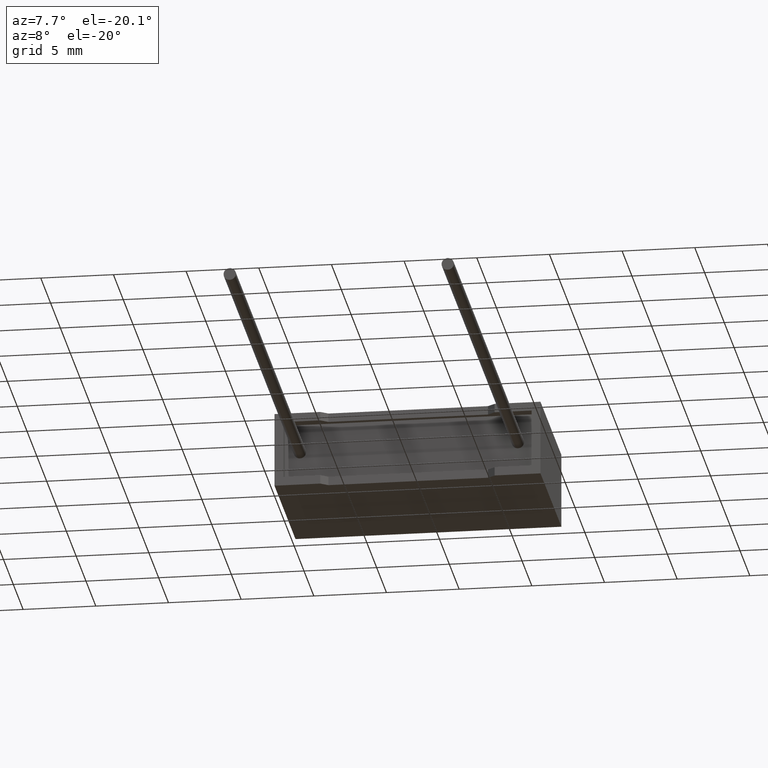
[diagram: clean part render]
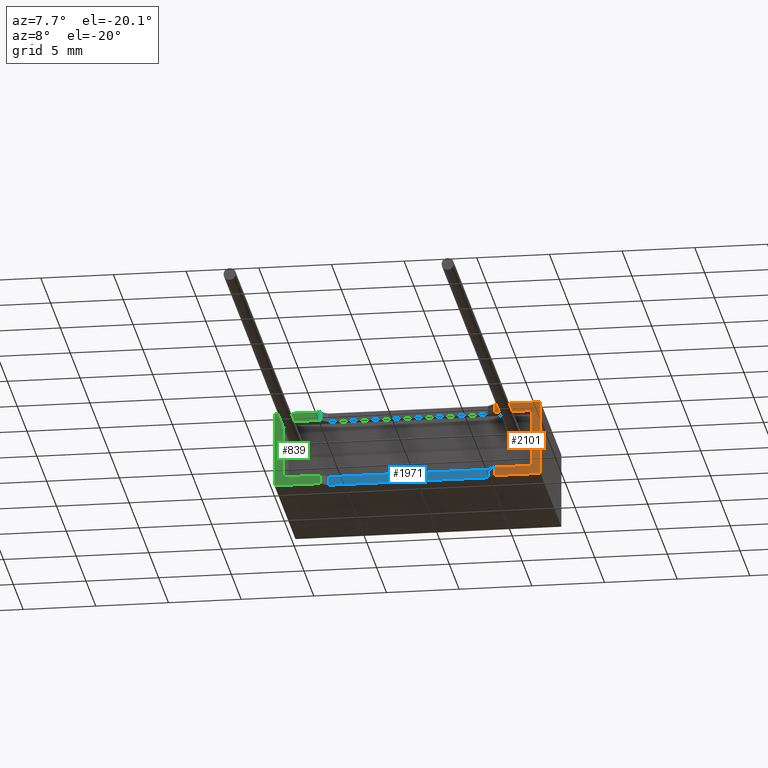
[diagram: same view with three faces highlighted in distinct colors, each labeled with its STEP entity id]
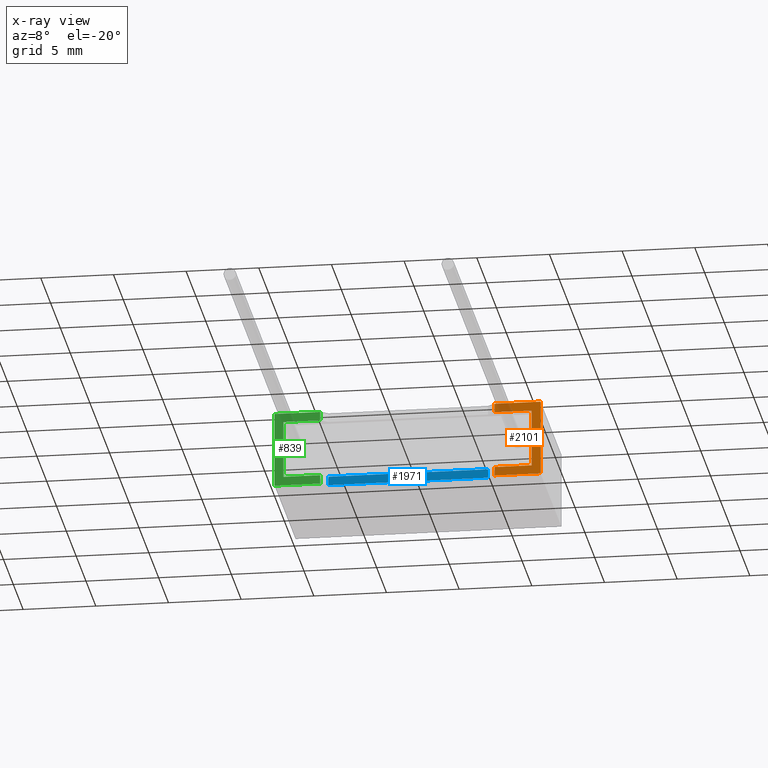
[diagram: x-ray of the same camera — body ghosted, the three highlighted faces saturated]
A machine part, auxiliary view with three faces highlighted in distinct colors.
The next image is the same camera in x-ray (body ghosted, the three faces saturated) — at least one of them is partly hidden behind the body in this view.
Their STEP definitions:

[orange] entity #2101 — the highlighted planar face has unit normal (0, 1, 0).
#57 = VECTOR ( 'NONE', #1546, 1000.000000000000000 ) ;
#67 = PLANE ( 'NONE',  #2442 ) ;
#133 = CARTESIAN_POINT ( 'NONE',  ( 15.15000000000000036, 1.928818708657082084E-16, 4.590000060999998688 ) ) ;
#216 = DIRECTION ( 'NONE',  ( -0.000000000000000000, -0.000000000000000000, 1.000000000000000000 ) ) ;
#228 = VERTEX_POINT ( 'NONE', #460 ) ;
#233 = VECTOR ( 'NONE', #2290, 1000.000000000000000 ) ;
#253 = DIRECTION ( 'NONE',  ( 0.000000000000000000, 1.000000000000000000, 0.000000000000000000 ) ) ;
#293 = ORIENTED_EDGE ( 'NONE', *, *, #1879, .F. ) ;
#373 = VECTOR ( 'NONE', #1919, 1000.000000000000000 ) ;
#382 = VERTEX_POINT ( 'NONE', #772 ) ;
#457 = LINE ( 'NONE', #3006, #2745 ) ;
#460 = CARTESIAN_POINT ( 'NONE',  ( 15.15000000000000036, 1.928818708657082084E-16, 5.200000000000000178 ) ) ;
#524 = LINE ( 'NONE', #2564, #373 ) ;
#526 = EDGE_CURVE ( 'NONE', #2128, #1459, #1277, .T. ) ;
#564 = CARTESIAN_POINT ( 'NONE',  ( 18.30000000000000071, 0.000000000000000000, 5.200000000000000178 ) ) ;
#578 = CARTESIAN_POINT ( 'NONE',  ( 15.15000000000000036, 1.928818708657082084E-16, 0.6099999390000000465 ) ) ;
#593 = DIRECTION ( 'NONE',  ( 1.000000000000000000, 0.000000000000000000, 0.000000000000000000 ) ) ;
#606 = EDGE_CURVE ( 'NONE', #228, #2128, #1998, .T. ) ;
#660 = VECTOR ( 'NONE', #1033, 1000.000000000000000 ) ;
#697 = EDGE_CURVE ( 'NONE', #1113, #382, #1408, .T. ) ;
#740 = ORIENTED_EDGE ( 'NONE', *, *, #2334, .F. ) ;
#772 = CARTESIAN_POINT ( 'NONE',  ( 17.69000006100000277, 0.000000000000000000, 4.590000060999998688 ) ) ;
#850 = CARTESIAN_POINT ( 'NONE',  ( 17.69000006100000277, 0.000000000000000000, 0.6099999390000000465 ) ) ;
#876 = ORIENTED_EDGE ( 'NONE', *, *, #1475, .F. ) ;
#878 = ORIENTED_EDGE ( 'NONE', *, *, #526, .F. ) ;
#926 = EDGE_CURVE ( 'NONE', #382, #2717, #524, .T. ) ;
#980 = DIRECTION ( 'NONE',  ( 0.000000000000000000, 0.000000000000000000, 1.000000000000000000 ) ) ;
#1033 = DIRECTION ( 'NONE',  ( 1.000000000000000000, 0.000000000000000000, 0.000000000000000000 ) ) ;
#1052 = LINE ( 'NONE', #2223, #2062 ) ;
#1059 = FACE_OUTER_BOUND ( 'NONE', #1911, .T. ) ;
#1113 = VERTEX_POINT ( 'NONE', #850 ) ;
#1212 = ORIENTED_EDGE ( 'NONE', *, *, #606, .F. ) ;
#1271 = VECTOR ( 'NONE', #593, 1000.000000000000000 ) ;
#1277 = LINE ( 'NONE', #564, #57 ) ;
#1335 = LINE ( 'NONE', #2480, #1271 ) ;
#1387 = ORIENTED_EDGE ( 'NONE', *, *, #926, .F. ) ;
#1408 = LINE ( 'NONE', #2404, #1901 ) ;
#1430 = CARTESIAN_POINT ( 'NONE',  ( 18.30000000000000071, 0.000000000000000000, 5.200000000000000178 ) ) ;
#1459 = VERTEX_POINT ( 'NONE', #3056 ) ;
#1475 = EDGE_CURVE ( 'NONE', #2434, #2757, #457, .T. ) ;
#1546 = DIRECTION ( 'NONE',  ( -0.000000000000000000, -0.000000000000000000, -1.000000000000000000 ) ) ;
#1616 = DIRECTION ( 'NONE',  ( 0.000000000000000000, -0.000000000000000000, 1.000000000000000000 ) ) ;
#1721 = EDGE_CURVE ( 'NONE', #2434, #1459, #1335, .T. ) ;
#1879 = EDGE_CURVE ( 'NONE', #2757, #1113, #3034, .T. ) ;
#1901 = VECTOR ( 'NONE', #980, 1000.000000000000000 ) ;
#1911 = EDGE_LOOP ( 'NONE', ( #876, #2341, #878, #1212, #740, #1387, #2084, #293 ) ) ;
#1919 = DIRECTION ( 'NONE',  ( -1.000000000000000000, 0.000000000000000000, -1.015646055963656327E-16 ) ) ;
#1998 = LINE ( 'NONE', #2450, #660 ) ;
#2062 = VECTOR ( 'NONE', #2282, 1000.000000000000000 ) ;
#2084 = ORIENTED_EDGE ( 'NONE', *, *, #697, .F. ) ;
#2101 = ADVANCED_FACE ( 'NONE', ( #1059 ), #67, .F. ) ;
#2128 = VERTEX_POINT ( 'NONE', #1430 ) ;
#2223 = CARTESIAN_POINT ( 'NONE',  ( 15.15000000000000036, 1.928818708657082084E-16, 0.000000000000000000 ) ) ;
#2282 = DIRECTION ( 'NONE',  ( -0.000000000000000000, -0.000000000000000000, 1.000000000000000000 ) ) ;
#2290 = DIRECTION ( 'NONE',  ( 1.000000000000000000, 0.000000000000000000, 0.000000000000000000 ) ) ;
#2334 = EDGE_CURVE ( 'NONE', #2717, #228, #1052, .T. ) ;
#2341 = ORIENTED_EDGE ( 'NONE', *, *, #1721, .T. ) ;
#2404 = CARTESIAN_POINT ( 'NONE',  ( 17.69000006100000277, 0.000000000000000000, 0.6099999390000000465 ) ) ;
#2434 = VERTEX_POINT ( 'NONE', #2573 ) ;
#2442 = AXIS2_PLACEMENT_3D ( 'NONE', #2784, #253, #1616 ) ;
#2450 = CARTESIAN_POINT ( 'NONE',  ( 0.000000000000000000, 0.000000000000000000, 5.200000000000000178 ) ) ;
#2480 = CARTESIAN_POINT ( 'NONE',  ( 0.000000000000000000, 0.000000000000000000, 0.000000000000000000 ) ) ;
#2564 = CARTESIAN_POINT ( 'NONE',  ( 17.69000006100000277, 0.000000000000000000, 4.590000060999998688 ) ) ;
#2565 = CARTESIAN_POINT ( 'NONE',  ( 0.6099999390000000465, 0.000000000000000000, 0.6099999390000000465 ) ) ;
#2573 = CARTESIAN_POINT ( 'NONE',  ( 15.15000000000000036, 1.928818708657082084E-16, 0.000000000000000000 ) ) ;
#2717 = VERTEX_POINT ( 'NONE', #133 ) ;
#2745 = VECTOR ( 'NONE', #216, 1000.000000000000000 ) ;
#2757 = VERTEX_POINT ( 'NONE', #578 ) ;
#2784 = CARTESIAN_POINT ( 'NONE',  ( 0.000000000000000000, 0.000000000000000000, 5.200000000000000178 ) ) ;
#3006 = CARTESIAN_POINT ( 'NONE',  ( 15.15000000000000036, 1.928818708657082084E-16, 0.000000000000000000 ) ) ;
#3034 = LINE ( 'NONE', #2565, #233 ) ;
#3056 = CARTESIAN_POINT ( 'NONE',  ( 18.30000000000000071, 0.000000000000000000, 0.000000000000000000 ) ) ;

[blue] entity #1971 — the highlighted planar face has unit normal (-0, 1, 0).
#50 = VERTEX_POINT ( 'NONE', #2184 ) ;
#182 = EDGE_CURVE ( 'NONE', #890, #50, #445, .T. ) ;
#220 = DIRECTION ( 'NONE',  ( -0.000000000000000000, -0.000000000000000000, 1.000000000000000000 ) ) ;
#259 = DIRECTION ( 'NONE',  ( -1.000000000000000000, -1.184530094712512190E-16, 0.000000000000000000 ) ) ;
#445 = LINE ( 'NONE', #2798, #2724 ) ;
#580 = ORIENTED_EDGE ( 'NONE', *, *, #182, .F. ) ;
#671 = ORIENTED_EDGE ( 'NONE', *, *, #2374, .F. ) ;
#742 = VECTOR ( 'NONE', #2046, 1000.000000000000000 ) ;
#779 = FACE_OUTER_BOUND ( 'NONE', #1657, .T. ) ;
#805 = DIRECTION ( 'NONE',  ( -0.000000000000000000, -0.000000000000000000, 1.000000000000000000 ) ) ;
#890 = VERTEX_POINT ( 'NONE', #2758 ) ;
#937 = ORIENTED_EDGE ( 'NONE', *, *, #986, .T. ) ;
#986 = EDGE_CURVE ( 'NONE', #2074, #2698, #2117, .T. ) ;
#1184 = PLANE ( 'NONE',  #1675 ) ;
#1427 = LINE ( 'NONE', #2387, #2109 ) ;
#1657 = EDGE_LOOP ( 'NONE', ( #580, #671, #937, #2882 ) ) ;
#1675 = AXIS2_PLACEMENT_3D ( 'NONE', #1951, #2864, #259 ) ;
#1676 = EDGE_CURVE ( 'NONE', #50, #2698, #1427, .T. ) ;
#1889 = CARTESIAN_POINT ( 'NONE',  ( 14.64180899999999852, 0.3827279999999998461, 0.000000000000000000 ) ) ;
#1951 = CARTESIAN_POINT ( 'NONE',  ( 9.150000000000000355, 0.3827280000000004567, 0.000000000000000000 ) ) ;
#1971 = ADVANCED_FACE ( 'NONE', ( #779 ), #1184, .F. ) ;
#1979 = CARTESIAN_POINT ( 'NONE',  ( 14.64180899999999852, 0.3827279999999998461, 0.000000000000000000 ) ) ;
#2030 = CARTESIAN_POINT ( 'NONE',  ( 14.64180899999999852, 0.3827279999999998461, 0.6099999390000000465 ) ) ;
#2046 = DIRECTION ( 'NONE',  ( -1.000000000000000000, -1.184530094712512190E-16, 0.000000000000000000 ) ) ;
#2074 = VERTEX_POINT ( 'NONE', #1979 ) ;
#2109 = VECTOR ( 'NONE', #2370, 1000.000000000000000 ) ;
#2117 = LINE ( 'NONE', #1889, #2624 ) ;
#2184 = CARTESIAN_POINT ( 'NONE',  ( 3.658191000000000859, 0.3827279999999998461, 0.6099999390000000465 ) ) ;
#2370 = DIRECTION ( 'NONE',  ( 1.000000000000000000, 1.184530094712512190E-16, 0.000000000000000000 ) ) ;
#2374 = EDGE_CURVE ( 'NONE', #2074, #890, #2950, .T. ) ;
#2387 = CARTESIAN_POINT ( 'NONE',  ( 0.6099999390000000465, 0.3827279999999994575, 0.6099999390000000465 ) ) ;
#2624 = VECTOR ( 'NONE', #805, 1000.000000000000000 ) ;
#2698 = VERTEX_POINT ( 'NONE', #2030 ) ;
#2724 = VECTOR ( 'NONE', #220, 1000.000000000000000 ) ;
#2752 = CARTESIAN_POINT ( 'NONE',  ( 9.150000000000000355, 0.3827280000000004567, 0.000000000000000000 ) ) ;
#2758 = CARTESIAN_POINT ( 'NONE',  ( 3.658191000000000859, 0.3827279999999998461, 0.000000000000000000 ) ) ;
#2798 = CARTESIAN_POINT ( 'NONE',  ( 3.658191000000000859, 0.3827279999999998461, 0.000000000000000000 ) ) ;
#2864 = DIRECTION ( 'NONE',  ( -1.184530094712512190E-16, 1.000000000000000000, 0.000000000000000000 ) ) ;
#2882 = ORIENTED_EDGE ( 'NONE', *, *, #1676, .F. ) ;
#2950 = LINE ( 'NONE', #2752, #742 ) ;

[green] entity #839 — the highlighted planar face has unit normal (0, 1, 0).
#48 = LINE ( 'NONE', #2848, #1570 ) ;
#72 = ORIENTED_EDGE ( 'NONE', *, *, #92, .F. ) ;
#92 = EDGE_CURVE ( 'NONE', #2114, #2423, #2500, .T. ) ;
#111 = CARTESIAN_POINT ( 'NONE',  ( 0.000000000000000000, 0.000000000000000000, 5.200000000000000178 ) ) ;
#155 = AXIS2_PLACEMENT_3D ( 'NONE', #2305, #1168, #2068 ) ;
#226 = CARTESIAN_POINT ( 'NONE',  ( 17.69000006100000277, 0.000000000000000000, 4.590000060999998688 ) ) ;
#227 = EDGE_CURVE ( 'NONE', #2423, #2512, #1130, .T. ) ;
#262 = EDGE_LOOP ( 'NONE', ( #848, #1649, #2710, #72, #905, #2563, #2172, #1985 ) ) ;
#275 = CARTESIAN_POINT ( 'NONE',  ( 3.150000000000000799, 1.928818708657082084E-16, 0.000000000000000000 ) ) ;
#290 = VECTOR ( 'NONE', #1575, 1000.000000000000000 ) ;
#317 = VECTOR ( 'NONE', #2006, 1000.000000000000000 ) ;
#354 = LINE ( 'NONE', #2925, #317 ) ;
#399 = CARTESIAN_POINT ( 'NONE',  ( 0.6099999389999992694, 0.000000000000000000, 4.590000060999996911 ) ) ;
#426 = CARTESIAN_POINT ( 'NONE',  ( 3.150000000000000799, 1.928818708657082084E-16, 0.6099999390000000465 ) ) ;
#559 = FACE_OUTER_BOUND ( 'NONE', #262, .T. ) ;
#636 = CARTESIAN_POINT ( 'NONE',  ( 3.150000000000000799, 1.928818708657082084E-16, 0.000000000000000000 ) ) ;
#657 = CARTESIAN_POINT ( 'NONE',  ( 0.6099999390000000465, 0.000000000000000000, 0.6099999390000000465 ) ) ;
#686 = LINE ( 'NONE', #636, #290 ) ;
#839 = ADVANCED_FACE ( 'NONE', ( #559 ), #2445, .F. ) ;
#848 = ORIENTED_EDGE ( 'NONE', *, *, #2263, .T. ) ;
#905 = ORIENTED_EDGE ( 'NONE', *, *, #976, .F. ) ;
#914 = EDGE_CURVE ( 'NONE', #1044, #1576, #2129, .T. ) ;
#925 = LINE ( 'NONE', #226, #2235 ) ;
#976 = EDGE_CURVE ( 'NONE', #2238, #2114, #925, .T. ) ;
#1009 = EDGE_CURVE ( 'NONE', #2994, #2512, #354, .T. ) ;
#1043 = EDGE_CURVE ( 'NONE', #1044, #1400, #1737, .T. ) ;
#1044 = VERTEX_POINT ( 'NONE', #111 ) ;
#1130 = LINE ( 'NONE', #657, #2421 ) ;
#1168 = DIRECTION ( 'NONE',  ( 0.000000000000000000, 1.000000000000000000, 0.000000000000000000 ) ) ;
#1181 = DIRECTION ( 'NONE',  ( -1.000000000000000000, 0.000000000000000000, -1.015646055963656327E-16 ) ) ;
#1219 = CARTESIAN_POINT ( 'NONE',  ( 3.150000000000000799, 1.928818708657082084E-16, 4.590000060999996911 ) ) ;
#1323 = CARTESIAN_POINT ( 'NONE',  ( 0.6099999390000000465, 0.000000000000000000, 0.6099999390000001576 ) ) ;
#1340 = DIRECTION ( 'NONE',  ( 1.906888184612607755E-16, 0.000000000000000000, -1.000000000000000000 ) ) ;
#1400 = VERTEX_POINT ( 'NONE', #2222 ) ;
#1540 = CARTESIAN_POINT ( 'NONE',  ( 0.000000000000000000, 0.000000000000000000, 5.200000000000000178 ) ) ;
#1570 = VECTOR ( 'NONE', #2376, 1000.000000000000000 ) ;
#1575 = DIRECTION ( 'NONE',  ( -0.000000000000000000, -0.000000000000000000, 1.000000000000000000 ) ) ;
#1576 = VERTEX_POINT ( 'NONE', #2152 ) ;
#1641 = CARTESIAN_POINT ( 'NONE',  ( 0.000000000000000000, 0.000000000000000000, 5.200000000000000178 ) ) ;
#1649 = ORIENTED_EDGE ( 'NONE', *, *, #1009, .T. ) ;
#1650 = DIRECTION ( 'NONE',  ( 1.000000000000000000, 0.000000000000000000, 0.000000000000000000 ) ) ;
#1669 = CARTESIAN_POINT ( 'NONE',  ( 0.6099999389999992694, 0.000000000000000000, 4.590000060999996911 ) ) ;
#1737 = LINE ( 'NONE', #1540, #2279 ) ;
#1756 = VECTOR ( 'NONE', #2354, 1000.000000000000000 ) ;
#1985 = ORIENTED_EDGE ( 'NONE', *, *, #914, .T. ) ;
#2006 = DIRECTION ( 'NONE',  ( -0.000000000000000000, -0.000000000000000000, 1.000000000000000000 ) ) ;
#2068 = DIRECTION ( 'NONE',  ( 0.000000000000000000, -0.000000000000000000, 1.000000000000000000 ) ) ;
#2114 = VERTEX_POINT ( 'NONE', #1669 ) ;
#2129 = LINE ( 'NONE', #1641, #1756 ) ;
#2152 = CARTESIAN_POINT ( 'NONE',  ( 0.000000000000000000, 0.000000000000000000, 0.000000000000000000 ) ) ;
#2172 = ORIENTED_EDGE ( 'NONE', *, *, #1043, .F. ) ;
#2222 = CARTESIAN_POINT ( 'NONE',  ( 3.150000000000000799, 1.928818708657082084E-16, 5.200000000000000178 ) ) ;
#2235 = VECTOR ( 'NONE', #1181, 1000.000000000000000 ) ;
#2238 = VERTEX_POINT ( 'NONE', #1219 ) ;
#2263 = EDGE_CURVE ( 'NONE', #1576, #2994, #48, .T. ) ;
#2279 = VECTOR ( 'NONE', #2894, 1000.000000000000000 ) ;
#2305 = CARTESIAN_POINT ( 'NONE',  ( 0.000000000000000000, 0.000000000000000000, 5.200000000000000178 ) ) ;
#2354 = DIRECTION ( 'NONE',  ( -0.000000000000000000, -0.000000000000000000, -1.000000000000000000 ) ) ;
#2376 = DIRECTION ( 'NONE',  ( 1.000000000000000000, 0.000000000000000000, 0.000000000000000000 ) ) ;
#2421 = VECTOR ( 'NONE', #1650, 1000.000000000000000 ) ;
#2423 = VERTEX_POINT ( 'NONE', #1323 ) ;
#2445 = PLANE ( 'NONE',  #155 ) ;
#2500 = LINE ( 'NONE', #399, #2917 ) ;
#2512 = VERTEX_POINT ( 'NONE', #426 ) ;
#2563 = ORIENTED_EDGE ( 'NONE', *, *, #2853, .T. ) ;
#2710 = ORIENTED_EDGE ( 'NONE', *, *, #227, .F. ) ;
#2848 = CARTESIAN_POINT ( 'NONE',  ( 0.000000000000000000, 0.000000000000000000, 0.000000000000000000 ) ) ;
#2853 = EDGE_CURVE ( 'NONE', #2238, #1400, #686, .T. ) ;
#2894 = DIRECTION ( 'NONE',  ( 1.000000000000000000, 0.000000000000000000, 0.000000000000000000 ) ) ;
#2917 = VECTOR ( 'NONE', #1340, 1000.000000000000000 ) ;
#2925 = CARTESIAN_POINT ( 'NONE',  ( 3.150000000000000799, 1.928818708657082084E-16, 0.000000000000000000 ) ) ;
#2994 = VERTEX_POINT ( 'NONE', #275 ) ;